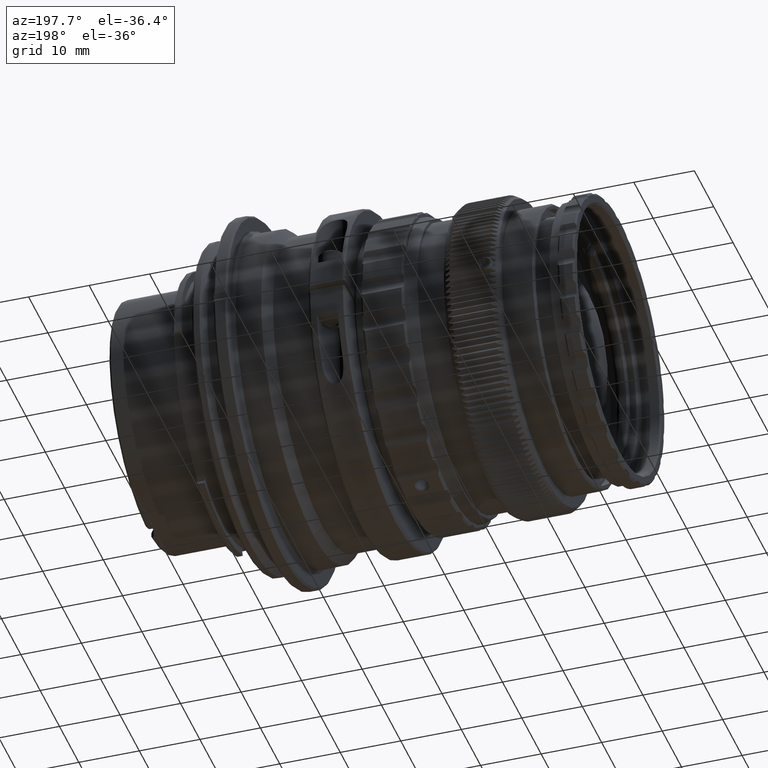
[diagram: clean part render]
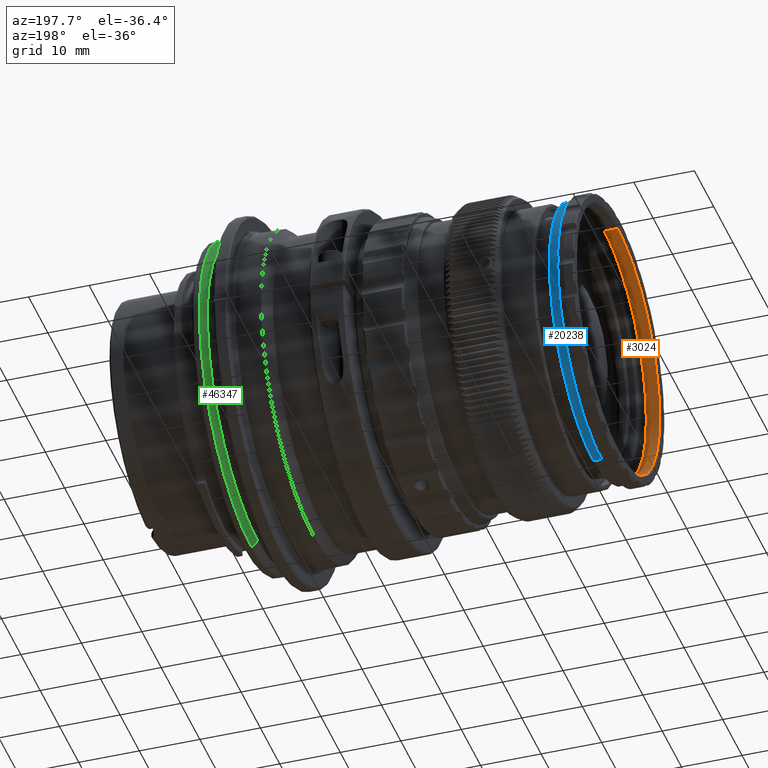
[diagram: same view with three faces highlighted in distinct colors, each labeled with its STEP entity id]
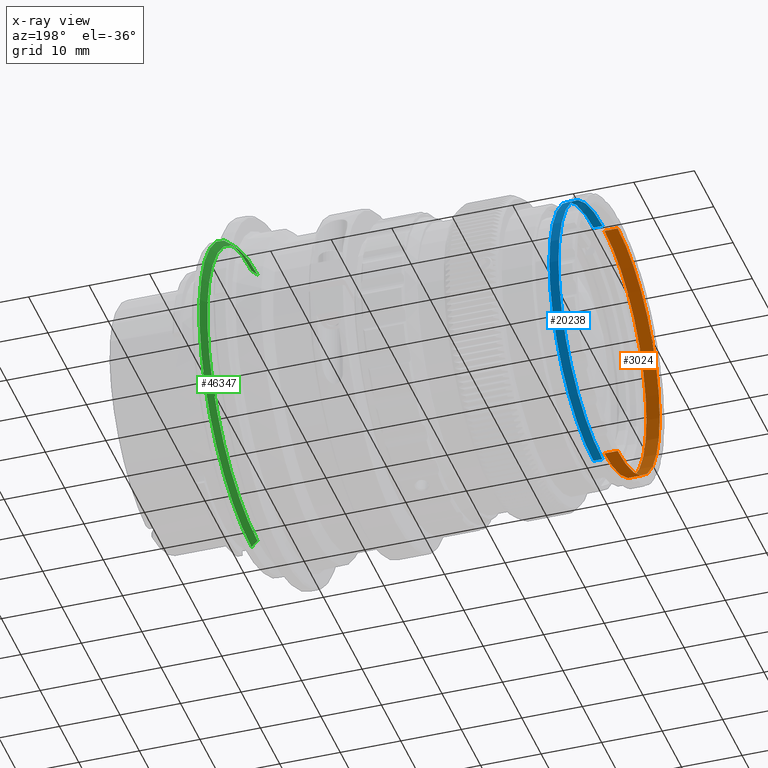
[diagram: x-ray of the same camera — body ghosted, the three highlighted faces saturated]
A machine part, auxiliary view with three faces highlighted in distinct colors.
The next image is the same camera in x-ray (body ghosted, the three faces saturated) — at least one of them is partly hidden behind the body in this view.
Their STEP definitions:

[orange] entity #3024 — the highlighted cylindrical surface (partial cylindrical patch) has radius 21.75 mm, axis along (-1, -0, -0).
#2875 = VERTEX_POINT ( 'NONE', #56215 ) ;
#3024 = ADVANCED_FACE ( 'NONE', ( #32973 ), #30061, .F. ) ;
#3335 = ORIENTED_EDGE ( 'NONE', *, *, #25477, .F. ) ;
#5094 = VERTEX_POINT ( 'NONE', #5606 ) ;
#5231 = CIRCLE ( 'NONE', #28936, 21.75000000000000400 ) ;
#5606 = CARTESIAN_POINT ( 'NONE',  ( -59.58904247734859900, 2.446766353648392500E-015, -21.75000000000000400 ) ) ;
#5912 = CARTESIAN_POINT ( 'NONE',  ( -61.78904247734860200, -2.168404344971008900E-016, 0.0000000000000000000 ) ) ;
#6263 = VECTOR ( 'NONE', #33019, 1000.000000000000000 ) ;
#6897 = DIRECTION ( 'NONE',  ( 0.0000000000000000000, 0.0000000000000000000, 1.000000000000000000 ) ) ;
#7698 = LINE ( 'NONE', #32821, #6263 ) ;
#15464 = AXIS2_PLACEMENT_3D ( 'NONE', #5912, #19443, #38663 ) ;
#16557 = VERTEX_POINT ( 'NONE', #31763 ) ;
#19032 = CARTESIAN_POINT ( 'NONE',  ( -59.58904247734859900, -2.168404344971008900E-016, 0.0000000000000000000 ) ) ;
#19443 = DIRECTION ( 'NONE',  ( -1.000000000000000000, 0.0000000000000000000, 0.0000000000000000000 ) ) ;
#20682 = EDGE_CURVE ( 'NONE', #2875, #24270, #57207, .T. ) ;
#21036 = DIRECTION ( 'NONE',  ( -1.000000000000000000, -0.0000000000000000000, -0.0000000000000000000 ) ) ;
#21514 = VECTOR ( 'NONE', #37628, 1000.000000000000000 ) ;
#21799 = ORIENTED_EDGE ( 'NONE', *, *, #20682, .T. ) ;
#23696 = DIRECTION ( 'NONE',  ( -1.000000000000000000, -0.0000000000000000000, -0.0000000000000000000 ) ) ;
#24270 = VERTEX_POINT ( 'NONE', #31540 ) ;
#25477 = EDGE_CURVE ( 'NONE', #16557, #24270, #7698, .T. ) ;
#28347 = DIRECTION ( 'NONE',  ( 0.0000000000000000000, 0.0000000000000000000, 1.000000000000000000 ) ) ;
#28936 = AXIS2_PLACEMENT_3D ( 'NONE', #19032, #23696, #28347 ) ;
#30061 = CYLINDRICAL_SURFACE ( 'NONE', #35011, 21.75000000000000400 ) ;
#31540 = CARTESIAN_POINT ( 'NONE',  ( -61.78904247734860200, -2.168404344971008900E-016, 21.75000000000000400 ) ) ;
#31763 = CARTESIAN_POINT ( 'NONE',  ( -59.58904247734859900, -2.168404344971008900E-016, 21.75000000000000400 ) ) ;
#32821 = CARTESIAN_POINT ( 'NONE',  ( -39.98904247734859800, -2.168404344971008900E-016, 21.75000000000000400 ) ) ;
#32973 = FACE_OUTER_BOUND ( 'NONE', #40777, .T. ) ;
#33019 = DIRECTION ( 'NONE',  ( -1.000000000000000000, -0.0000000000000000000, -0.0000000000000000000 ) ) ;
#35011 = AXIS2_PLACEMENT_3D ( 'NONE', #48341, #21036, #6897 ) ;
#37628 = DIRECTION ( 'NONE',  ( -1.000000000000000000, -0.0000000000000000000, -0.0000000000000000000 ) ) ;
#38663 = DIRECTION ( 'NONE',  ( 0.0000000000000000000, 0.0000000000000000000, 1.000000000000000000 ) ) ;
#40777 = EDGE_LOOP ( 'NONE', ( #47418, #46609, #21799, #3335 ) ) ;
#43690 = EDGE_CURVE ( 'NONE', #5094, #16557, #5231, .T. ) ;
#45700 = CARTESIAN_POINT ( 'NONE',  ( -39.98904247734859800, 2.446766353648392500E-015, -21.75000000000000400 ) ) ;
#46609 = ORIENTED_EDGE ( 'NONE', *, *, #48092, .T. ) ;
#47418 = ORIENTED_EDGE ( 'NONE', *, *, #43690, .F. ) ;
#47587 = LINE ( 'NONE', #45700, #21514 ) ;
#48092 = EDGE_CURVE ( 'NONE', #5094, #2875, #47587, .T. ) ;
#48341 = CARTESIAN_POINT ( 'NONE',  ( -39.98904247734859800, -2.168404344971008900E-016, 0.0000000000000000000 ) ) ;
#56215 = CARTESIAN_POINT ( 'NONE',  ( -61.78904247734860200, 2.446766353648392500E-015, -21.75000000000000400 ) ) ;
#57207 = CIRCLE ( 'NONE', #15464, 21.75000000000000400 ) ;

[blue] entity #20238 — the highlighted cylindrical surface (partial cylindrical patch) has radius 22.8 mm, axis along (-1, -0, -0).
#252 = CARTESIAN_POINT ( 'NONE',  ( -39.98904247734859800, -2.168404344971008900E-016, 22.80000000000000100 ) ) ;
#1502 = VECTOR ( 'NONE', #32537, 1000.000000000000000 ) ;
#2299 = AXIS2_PLACEMENT_3D ( 'NONE', #47361, #38848, #43085 ) ;
#3873 = EDGE_CURVE ( 'NONE', #21046, #5979, #25689, .T. ) ;
#4297 = EDGE_LOOP ( 'NONE', ( #52480, #55543, #22391, #23644 ) ) ;
#5979 = VERTEX_POINT ( 'NONE', #58532 ) ;
#7640 = LINE ( 'NONE', #51466, #16335 ) ;
#7746 = DIRECTION ( 'NONE',  ( 0.0000000000000000000, 0.0000000000000000000, 1.000000000000000000 ) ) ;
#10249 = EDGE_CURVE ( 'NONE', #55085, #5979, #12321, .T. ) ;
#12321 = LINE ( 'NONE', #252, #1502 ) ;
#13916 = FACE_OUTER_BOUND ( 'NONE', #4297, .T. ) ;
#14402 = EDGE_CURVE ( 'NONE', #47929, #21046, #7640, .T. ) ;
#16335 = VECTOR ( 'NONE', #56087, 1000.000000000000000 ) ;
#20041 = CARTESIAN_POINT ( 'NONE',  ( -39.98904247734859800, -2.168404344971008900E-016, 0.0000000000000000000 ) ) ;
#20238 = ADVANCED_FACE ( 'NONE', ( #13916 ), #52920, .T. ) ;
#20693 = AXIS2_PLACEMENT_3D ( 'NONE', #21903, #26558, #7746 ) ;
#21046 = VERTEX_POINT ( 'NONE', #42246 ) ;
#21496 = CARTESIAN_POINT ( 'NONE',  ( -57.78904247734860200, -2.168404344971008900E-016, 22.80000000000000100 ) ) ;
#21903 = CARTESIAN_POINT ( 'NONE',  ( -59.28904247734860200, -2.168404344971008900E-016, 0.0000000000000000000 ) ) ;
#22391 = ORIENTED_EDGE ( 'NONE', *, *, #3873, .T. ) ;
#23644 = ORIENTED_EDGE ( 'NONE', *, *, #10249, .F. ) ;
#25689 = CIRCLE ( 'NONE', #20693, 22.80000000000000100 ) ;
#26558 = DIRECTION ( 'NONE',  ( 1.000000000000000000, 0.0000000000000000000, 0.0000000000000000000 ) ) ;
#32537 = DIRECTION ( 'NONE',  ( -1.000000000000000000, -0.0000000000000000000, -0.0000000000000000000 ) ) ;
#35861 = CARTESIAN_POINT ( 'NONE',  ( -57.78904247734860200, 2.575354267558864400E-015, -22.80000000000000100 ) ) ;
#38848 = DIRECTION ( 'NONE',  ( -1.000000000000000000, -0.0000000000000000000, -0.0000000000000000000 ) ) ;
#42246 = CARTESIAN_POINT ( 'NONE',  ( -59.28904247734860200, 2.575354267558864400E-015, -22.80000000000000100 ) ) ;
#43082 = DIRECTION ( 'NONE',  ( -1.000000000000000000, -0.0000000000000000000, -0.0000000000000000000 ) ) ;
#43085 = DIRECTION ( 'NONE',  ( 0.0000000000000000000, 0.0000000000000000000, 1.000000000000000000 ) ) ;
#44628 = CIRCLE ( 'NONE', #2299, 22.80000000000000100 ) ;
#47361 = CARTESIAN_POINT ( 'NONE',  ( -57.78904247734860200, -2.168404344971008900E-016, 0.0000000000000000000 ) ) ;
#47929 = VERTEX_POINT ( 'NONE', #35861 ) ;
#51466 = CARTESIAN_POINT ( 'NONE',  ( -39.98904247734859800, 2.575354267558864400E-015, -22.80000000000000100 ) ) ;
#52205 = AXIS2_PLACEMENT_3D ( 'NONE', #20041, #43082, #52362 ) ;
#52362 = DIRECTION ( 'NONE',  ( 0.0000000000000000000, 0.0000000000000000000, 1.000000000000000000 ) ) ;
#52480 = ORIENTED_EDGE ( 'NONE', *, *, #58389, .T. ) ;
#52920 = CYLINDRICAL_SURFACE ( 'NONE', #52205, 22.80000000000000100 ) ;
#55085 = VERTEX_POINT ( 'NONE', #21496 ) ;
#55543 = ORIENTED_EDGE ( 'NONE', *, *, #14402, .T. ) ;
#56087 = DIRECTION ( 'NONE',  ( -1.000000000000000000, -0.0000000000000000000, -0.0000000000000000000 ) ) ;
#58389 = EDGE_CURVE ( 'NONE', #55085, #47929, #44628, .T. ) ;
#58532 = CARTESIAN_POINT ( 'NONE',  ( -59.28904247734860200, -2.168404344971008900E-016, 22.80000000000000100 ) ) ;

[green] entity #46347 — the highlighted conical surface has half-angle 45 deg.
#1614 = CIRCLE ( 'NONE', #18834, 26.00000000000000400 ) ;
#3543 = DIRECTION ( 'NONE',  ( 0.0000000000000000000, 0.0000000000000000000, -1.000000000000000000 ) ) ;
#4111 = DIRECTION ( 'NONE',  ( 0.7071067811865516800, 0.0000000000000000000, -0.7071067811865434600 ) ) ;
#4235 = CARTESIAN_POINT ( 'NONE',  ( -1.299999999999999600, 3.306546357697853700E-015, 27.00000000000000000 ) ) ;
#4940 = CONICAL_SURFACE ( 'NONE', #47322, 27.00000000000000000, 0.7853981633974425100 ) ;
#9820 = VERTEX_POINT ( 'NONE', #11958 ) ;
#11958 = CARTESIAN_POINT ( 'NONE',  ( -2.300000000000010500, 3.184081677783119000E-015, -26.00000000000000400 ) ) ;
#14026 = VECTOR ( 'NONE', #4111, 1000.000000000000000 ) ;
#15875 = ORIENTED_EDGE ( 'NONE', *, *, #28625, .F. ) ;
#16197 = LINE ( 'NONE', #26952, #14026 ) ;
#17949 = EDGE_CURVE ( 'NONE', #9820, #19061, #1614, .T. ) ;
#18823 = EDGE_CURVE ( 'NONE', #19061, #57667, #37791, .T. ) ;
#18834 = AXIS2_PLACEMENT_3D ( 'NONE', #24964, #29596, #57260 ) ;
#19061 = VERTEX_POINT ( 'NONE', #35069 ) ;
#19161 = ORIENTED_EDGE ( 'NONE', *, *, #17949, .T. ) ;
#20272 = DIRECTION ( 'NONE',  ( 0.0000000000000000000, 0.0000000000000000000, 1.000000000000000000 ) ) ;
#20828 = VERTEX_POINT ( 'NONE', #40056 ) ;
#22770 = CARTESIAN_POINT ( 'NONE',  ( -1.300000000000000300, 3.306546357697853700E-015, 27.00000000000000000 ) ) ;
#24964 = CARTESIAN_POINT ( 'NONE',  ( -2.300000000000010500, 0.0000000000000000000, 0.0000000000000000000 ) ) ;
#25869 = EDGE_CURVE ( 'NONE', #20828, #57667, #51091, .T. ) ;
#26595 = CARTESIAN_POINT ( 'NONE',  ( -1.299999999999999600, 0.0000000000000000000, 0.0000000000000000000 ) ) ;
#26952 = CARTESIAN_POINT ( 'NONE',  ( -1.299999999999999600, 0.0000000000000000000, -27.00000000000000000 ) ) ;
#28625 = EDGE_CURVE ( 'NONE', #9820, #20828, #16197, .T. ) ;
#29596 = DIRECTION ( 'NONE',  ( 1.000000000000000000, 0.0000000000000000000, 0.0000000000000000000 ) ) ;
#32466 = FACE_OUTER_BOUND ( 'NONE', #43410, .T. ) ;
#34205 = CARTESIAN_POINT ( 'NONE',  ( -1.300000000000000300, 0.0000000000000000000, 0.0000000000000000000 ) ) ;
#34755 = ORIENTED_EDGE ( 'NONE', *, *, #25869, .F. ) ;
#35069 = CARTESIAN_POINT ( 'NONE',  ( -2.300000000000010500, 0.0000000000000000000, 26.00000000000000400 ) ) ;
#36322 = VECTOR ( 'NONE', #50321, 1000.000000000000000 ) ;
#36472 = DIRECTION ( 'NONE',  ( 1.000000000000000000, 0.0000000000000000000, 0.0000000000000000000 ) ) ;
#37791 = LINE ( 'NONE', #4235, #36322 ) ;
#40056 = CARTESIAN_POINT ( 'NONE',  ( -1.300000000000000300, 0.0000000000000000000, -27.00000000000000000 ) ) ;
#43410 = EDGE_LOOP ( 'NONE', ( #19161, #51575, #34755, #15875 ) ) ;
#46347 = ADVANCED_FACE ( 'NONE', ( #32466 ), #4940, .T. ) ;
#47322 = AXIS2_PLACEMENT_3D ( 'NONE', #26595, #36472, #3543 ) ;
#50321 = DIRECTION ( 'NONE',  ( 0.7071067811865516800, 8.659560562354883600E-017, 0.7071067811865434600 ) ) ;
#51091 = CIRCLE ( 'NONE', #51230, 27.00000000000000000 ) ;
#51230 = AXIS2_PLACEMENT_3D ( 'NONE', #34205, #52785, #20272 ) ;
#51575 = ORIENTED_EDGE ( 'NONE', *, *, #18823, .T. ) ;
#52785 = DIRECTION ( 'NONE',  ( 1.000000000000000000, 0.0000000000000000000, 0.0000000000000000000 ) ) ;
#57260 = DIRECTION ( 'NONE',  ( 3.336006684570782100E-017, 0.0000000000000000000, -1.000000000000000000 ) ) ;
#57667 = VERTEX_POINT ( 'NONE', #22770 ) ;